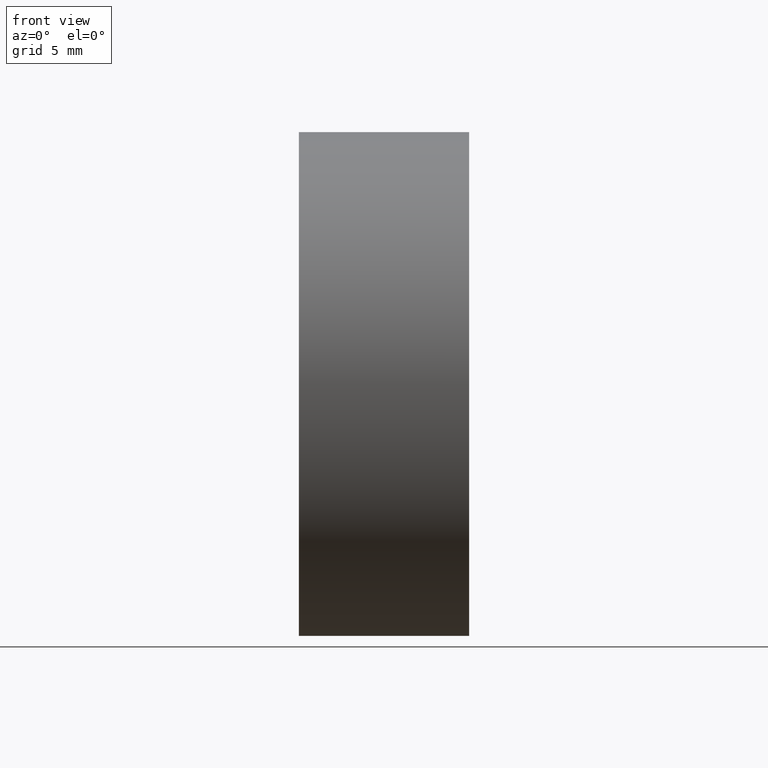
[diagram: clean part render]
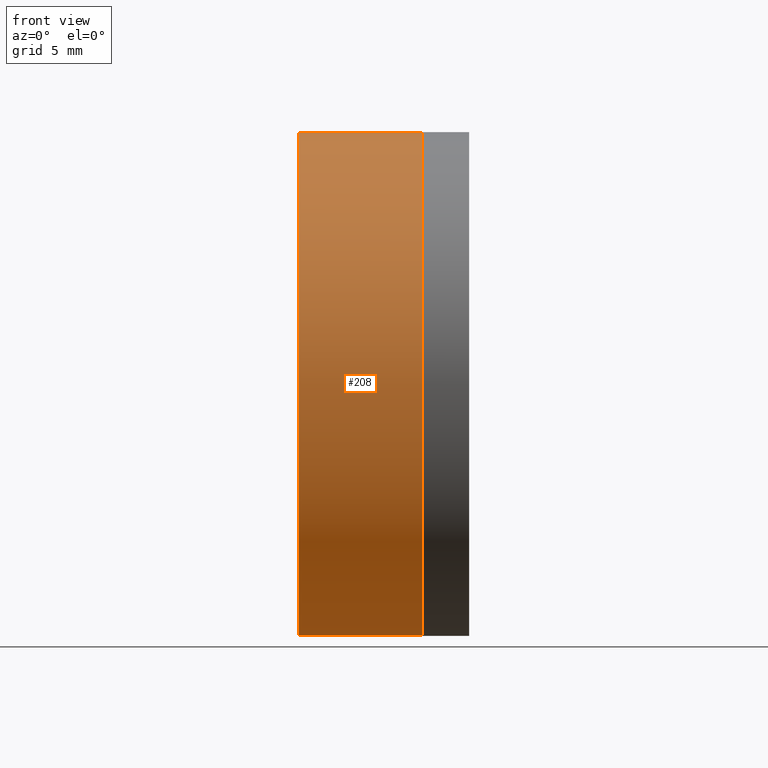
[diagram: same view with one face highlighted and labeled with its STEP entity id]
A machine part, front view. The second image highlights one B-rep face of the part: STEP entity #208.
In plain terms, the highlighted cylindrical surface (partial cylindrical patch) has radius 12.7 mm, axis along (-1, -0, 0).
Its self-contained STEP definition (entity closure, byte-faithful):
#4 = VERTEX_POINT ( 'NONE', #312 ) ;
#10 = ORIENTED_EDGE ( 'NONE', *, *, #331, .T. ) ;
#32 = DIRECTION ( 'NONE',  ( -1.000000000000000000, -0.0000000000000000000, 1.836970198721029700E-016 ) ) ;
#34 = LINE ( 'NONE', #319, #101 ) ;
#40 = ORIENTED_EDGE ( 'NONE', *, *, #124, .F. ) ;
#48 = DIRECTION ( 'NONE',  ( -1.000000000000000000, -0.0000000000000000000, 1.836970198721029700E-016 ) ) ;
#67 = CARTESIAN_POINT ( 'NONE',  ( -0.8160621761658039000, 0.0000000000000000000, 0.0000000000000000000 ) ) ;
#83 = DIRECTION ( 'NONE',  ( -1.000000000000000000, -0.0000000000000000000, 1.836970198721029700E-016 ) ) ;
#89 = DIRECTION ( 'NONE',  ( 1.878145495644173900E-016, 0.0000000000000000000, 1.000000000000000000 ) ) ;
#96 = AXIS2_PLACEMENT_3D ( 'NONE', #67, #32, #89 ) ;
#101 = VECTOR ( 'NONE', #83, 1000.000000000000000 ) ;
#123 = CIRCLE ( 'NONE', #260, 12.70000000000004700 ) ;
#124 = EDGE_CURVE ( 'NONE', #4, #173, #215, .T. ) ;
#128 = CARTESIAN_POINT ( 'NONE',  ( -0.8160621761658015700, 0.0000000000000000000, 12.70000000000004700 ) ) ;
#136 = CARTESIAN_POINT ( 'NONE',  ( 261.0615380360216000, 1.555301434917144500E-015, -12.70000000000009700 ) ) ;
#146 = VERTEX_POINT ( 'NONE', #136 ) ;
#167 = CARTESIAN_POINT ( 'NONE',  ( 254.8214953252485500, 0.0000000000000000000, 12.69999999999999900 ) ) ;
#171 = VERTEX_POINT ( 'NONE', #226 ) ;
#173 = VERTEX_POINT ( 'NONE', #167 ) ;
#208 = ADVANCED_FACE ( 'NONE', ( #223 ), #247, .T. ) ;
#209 = DIRECTION ( 'NONE',  ( 0.0000000000000000000, 0.0000000000000000000, 1.000000000000000000 ) ) ;
#212 = DIRECTION ( 'NONE',  ( -1.000000000000000000, -0.0000000000000000000, 1.836970198721029700E-016 ) ) ;
#215 = CIRCLE ( 'NONE', #229, 12.70000000000004500 ) ;
#223 = FACE_OUTER_BOUND ( 'NONE', #298, .T. ) ;
#226 = CARTESIAN_POINT ( 'NONE',  ( 261.0615380360216000, 0.0000000000000000000, 12.69999999999999900 ) ) ;
#229 = AXIS2_PLACEMENT_3D ( 'NONE', #237, #48, #316 ) ;
#234 = DIRECTION ( 'NONE',  ( -1.000000000000000000, -0.0000000000000000000, 1.836970198721029700E-016 ) ) ;
#236 = LINE ( 'NONE', #128, #302 ) ;
#237 = CARTESIAN_POINT ( 'NONE',  ( 254.8214953252485500, 0.0000000000000000000, -4.695985748039317800E-014 ) ) ;
#247 = CYLINDRICAL_SURFACE ( 'NONE', #96, 12.70000000000004700 ) ;
#260 = AXIS2_PLACEMENT_3D ( 'NONE', #264, #212, #209 ) ;
#264 = CARTESIAN_POINT ( 'NONE',  ( 261.0615380360216000, 0.0000000000000000000, -4.810613473023683200E-014 ) ) ;
#298 = EDGE_LOOP ( 'NONE', ( #328, #10, #310, #40 ) ) ;
#302 = VECTOR ( 'NONE', #234, 1000.000000000000000 ) ;
#310 = ORIENTED_EDGE ( 'NONE', *, *, #345, .T. ) ;
#312 = CARTESIAN_POINT ( 'NONE',  ( 254.8214953252485500, 1.555301434917144200E-015, -12.70000000000005100 ) ) ;
#314 = EDGE_CURVE ( 'NONE', #146, #4, #34, .T. ) ;
#316 = DIRECTION ( 'NONE',  ( 0.0000000000000000000, 0.0000000000000000000, 1.000000000000000000 ) ) ;
#319 = CARTESIAN_POINT ( 'NONE',  ( -0.8160621761658063400, 1.555301434917144500E-015, -12.70000000000004700 ) ) ;
#328 = ORIENTED_EDGE ( 'NONE', *, *, #314, .F. ) ;
#331 = EDGE_CURVE ( 'NONE', #146, #171, #123, .T. ) ;
#345 = EDGE_CURVE ( 'NONE', #171, #173, #236, .T. ) ;